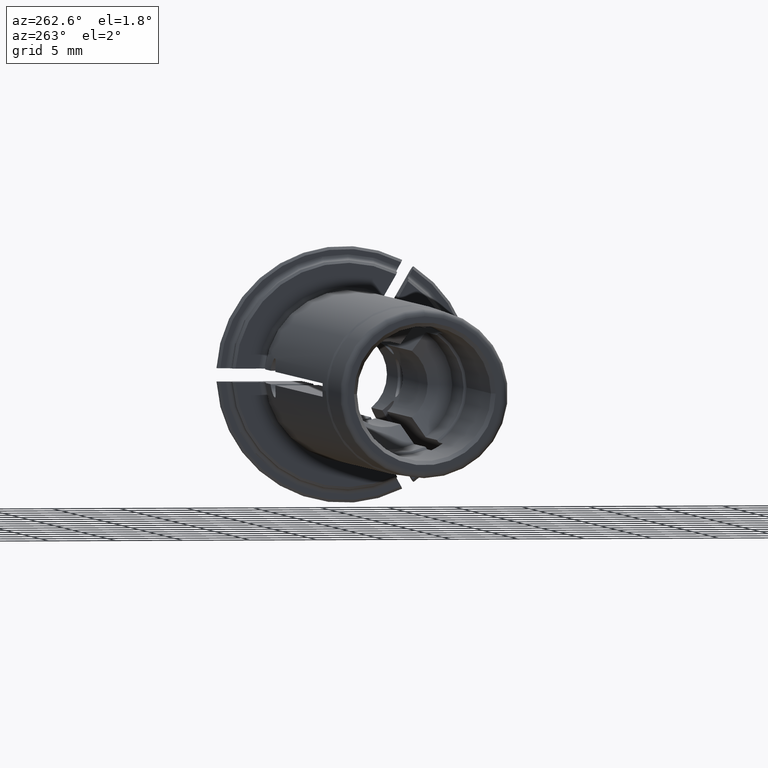
[diagram: clean part render]
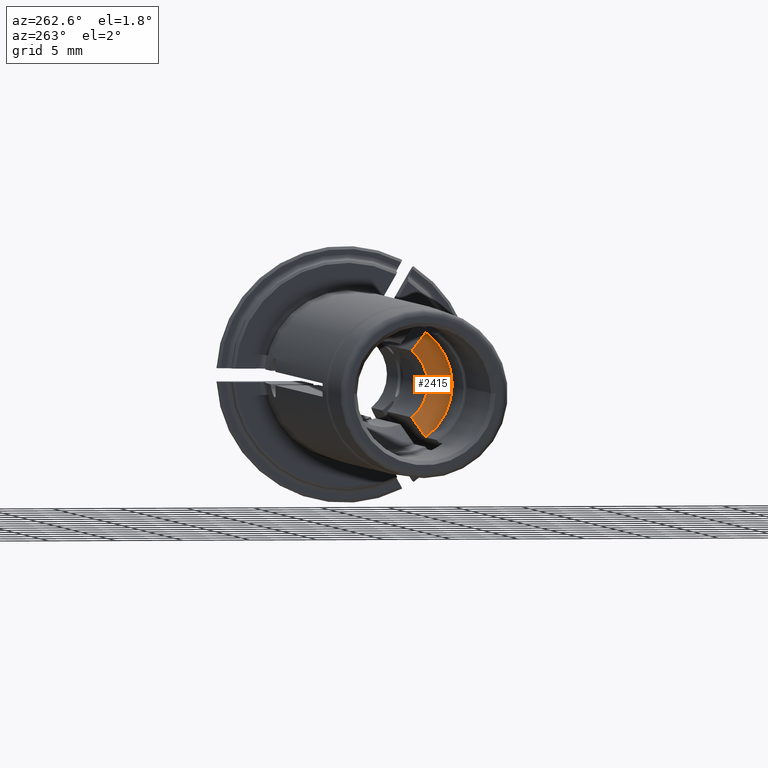
[diagram: same view with one face highlighted and labeled with its STEP entity id]
A machine part, auxiliary view. The second image highlights one B-rep face of the part: STEP entity #2415.
In plain terms, the highlighted conical surface has half-angle 45 deg.
Its self-contained STEP definition (entity closure, byte-faithful):
#260=CARTESIAN_POINT('',(-2.38E1,0.E0,0.E0));
#261=DIRECTION('',(-1.E0,0.E0,0.E0));
#262=DIRECTION('',(0.E0,-5.874909071559E-1,-8.092307668454E-1));
#263=AXIS2_PLACEMENT_3D('',#260,#261,#262);
#296=CARTESIAN_POINT('',(-2.38E1,-2.819956354348E0,-3.884307680858E0));
#297=CARTESIAN_POINT('',(-2.360955404824E1,-2.724212518132E0,
-3.718474492020E0));
#298=CARTESIAN_POINT('',(-2.323520471345E1,-2.535890300388E0,
-3.392290842694E0));
#299=CARTESIAN_POINT('',(-2.269312171003E1,-2.262690198694E0,
-2.919094385927E0));
#300=CARTESIAN_POINT('',(-2.234542562712E1,-2.086993601085E0,
-2.614778952151E0));
#301=CARTESIAN_POINT('',(-2.2175E1,-2.000704077769E0,-2.465321113607E0));
#303=CARTESIAN_POINT('',(-2.2175E1,-2.000704077769E0,2.465321113607E0));
#304=CARTESIAN_POINT('',(-2.234484998460E1,-2.086702143044E0,2.614274132015E0));
#305=CARTESIAN_POINT('',(-2.269177724429E1,-2.262011658717E0,2.917919120211E0));
#306=CARTESIAN_POINT('',(-2.323393440001E1,-2.535250945014E0,3.391183446702E0));
#307=CARTESIAN_POINT('',(-2.360900969884E1,-2.723938854668E0,3.718000492995E0));
#308=CARTESIAN_POINT('',(-2.38E1,-2.819956354348E0,3.884307680858E0));
#525=CARTESIAN_POINT('',(-2.2175E1,0.E0,0.E0));
#526=DIRECTION('',(1.E0,0.E0,0.E0));
#527=DIRECTION('',(0.E0,-6.301430166203E-1,7.764790908998E-1));
#528=AXIS2_PLACEMENT_3D('',#525,#526,#527);
#1887=VERTEX_POINT('',#303);
#1888=VERTEX_POINT('',#308);
#1981=VERTEX_POINT('',#296);
#1982=VERTEX_POINT('',#301);
#2402=CARTESIAN_POINT('',(-2.29875E1,0.E0,0.E0));
#2403=DIRECTION('',(-1.E0,0.E0,0.E0));
#2404=DIRECTION('',(0.E0,1.E0,0.E0));
#2405=AXIS2_PLACEMENT_3D('',#2402,#2403,#2404);
#2406=CONICAL_SURFACE('',#2405,3.9875E0,4.5E1);
#2408=ORIENTED_EDGE('',*,*,#2407,.T.);
#2410=ORIENTED_EDGE('',*,*,#2409,.F.);
#2411=ORIENTED_EDGE('',*,*,#2213,.T.);
#2412=ORIENTED_EDGE('',*,*,#2366,.F.);
#2413=EDGE_LOOP('',(#2408,#2410,#2411,#2412));
#2414=FACE_OUTER_BOUND('',#2413,.F.);
#2415=ADVANCED_FACE('',(#2414),#2406,.F.);
#264=CIRCLE('',#263,4.8E0);
#302=B_SPLINE_CURVE_WITH_KNOTS('',3,(#296,#297,#298,#299,#300,#301),
.UNSPECIFIED.,.F.,.F.,(4,1,1,4),(0.E0,3.333333333333E-1,6.666666666667E-1,1.E0),
.UNSPECIFIED.);
#309=B_SPLINE_CURVE_WITH_KNOTS('',3,(#303,#304,#305,#306,#307,#308),
.UNSPECIFIED.,.F.,.F.,(4,1,1,4),(0.E0,3.333333333333E-1,6.666666666667E-1,1.E0),
.UNSPECIFIED.);
#529=CIRCLE('',#528,3.175E0);
#2213=EDGE_CURVE('',#1887,#1888,#309,.T.);
#2366=EDGE_CURVE('',#1981,#1888,#264,.T.);
#2407=EDGE_CURVE('',#1981,#1982,#302,.T.);
#2409=EDGE_CURVE('',#1887,#1982,#529,.T.);